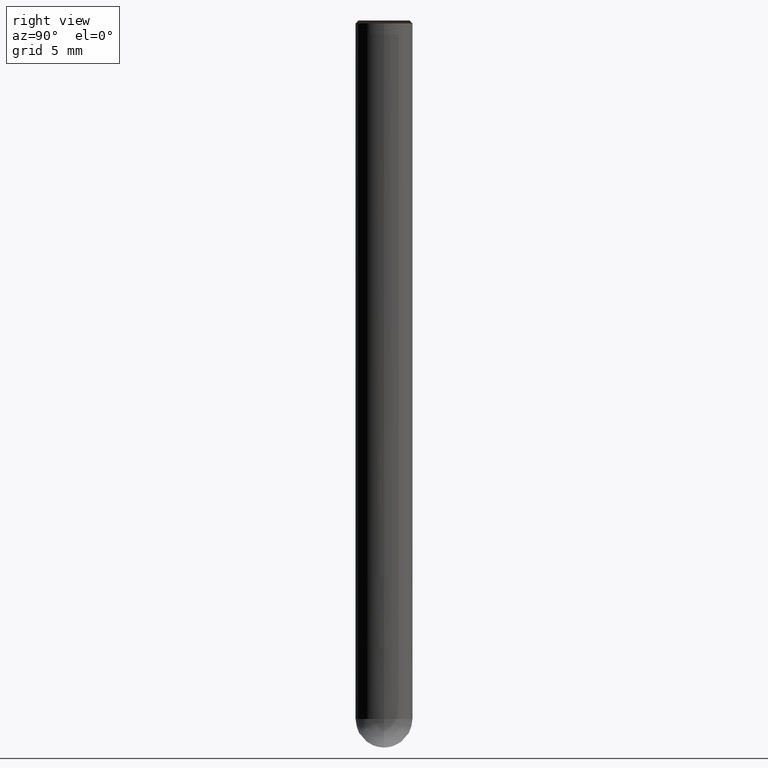
[diagram: clean part render]
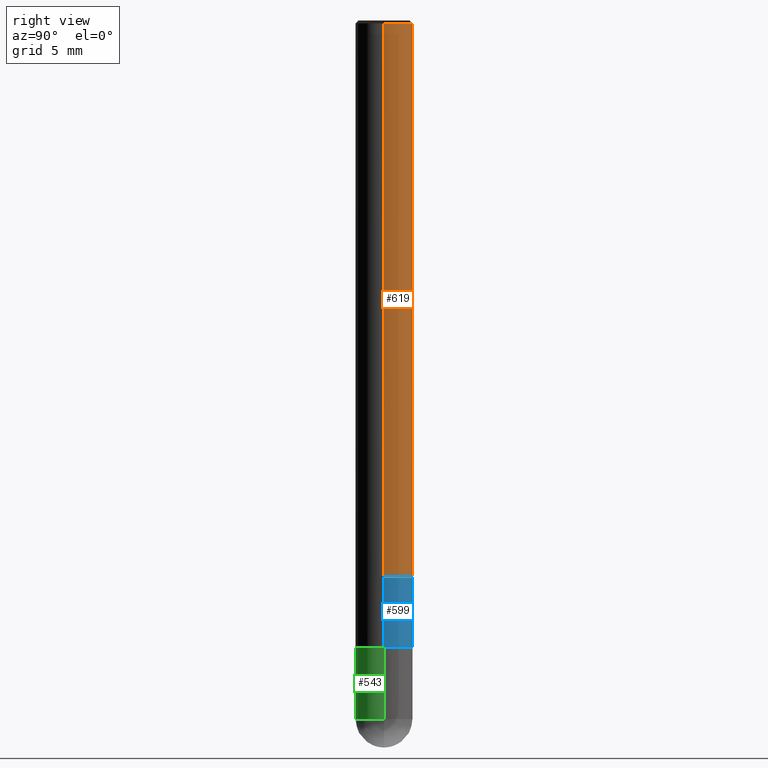
[diagram: same view with three faces highlighted in distinct colors, each labeled with its STEP entity id]
A machine part, right view with three faces highlighted in distinct colors.
Their STEP definitions:

[orange] entity #619 — the highlighted face is a freeform B-spline surface patch.
#425=CARTESIAN_POINT('',(2.0,0.0,0.0));
#426=CARTESIAN_POINT('',(2.0,2.0,0.0));
#427=CARTESIAN_POINT('',(0.0,2.0,0.0));
#428=CARTESIAN_POINT('',(-2.0,2.0,0.0));
#429=CARTESIAN_POINT('',(-2.0,0.0,0.0));
#430=CARTESIAN_POINT('',(2.0,0.0,38.8));
#431=CARTESIAN_POINT('',(2.0,2.0,38.8));
#432=CARTESIAN_POINT('',(0.0,2.0,38.8));
#433=CARTESIAN_POINT('',(-2.0,2.0,38.8));
#434=CARTESIAN_POINT('',(-2.0,0.0,38.8));
#600=(
BOUNDED_SURFACE()
B_SPLINE_SURFACE(1,2,(
(#425,#426,#427,#428,#429),
(#430,#431,#432,#433,#434)
), .UNSPECIFIED.,.F.,.F.,.F.)
B_SPLINE_SURFACE_WITH_KNOTS((2,2),(3,2,3),(
0.0,1.0),(
0.0,0.5,1.0), .UNSPECIFIED.)
GEOMETRIC_REPRESENTATION_ITEM()
RATIONAL_B_SPLINE_SURFACE(((1.0,0.707106781187,1.0,0.707106781187,1.0),
(1.0,0.707106781187,1.0,0.707106781187,1.0)
))
REPRESENTATION_ITEM('')
SURFACE()
);
#601=(
BOUNDED_CURVE()
B_SPLINE_CURVE(2,(#429,#428,#427,#426,#425),.UNSPECIFIED.,.F.,.F.)
B_SPLINE_CURVE_WITH_KNOTS((3,2,3),
(0.0,0.5,1.0),.UNSPECIFIED.)
CURVE()
GEOMETRIC_REPRESENTATION_ITEM()
RATIONAL_B_SPLINE_CURVE((1.0,0.707106781187,1.0,0.707106781187,1.0))
REPRESENTATION_ITEM('')
);
#602=(
BOUNDED_CURVE()
B_SPLINE_CURVE(1,(#425,#430),.UNSPECIFIED.,.F.,.F.)
B_SPLINE_CURVE_WITH_KNOTS((2,2),
(0.0,1.0),.UNSPECIFIED.)
CURVE()
GEOMETRIC_REPRESENTATION_ITEM()
RATIONAL_B_SPLINE_CURVE((1.0,1.0))
REPRESENTATION_ITEM('')
);
#603=(
BOUNDED_CURVE()
B_SPLINE_CURVE(2,(#430,#431,#432,#433,#434),.UNSPECIFIED.,.F.,.F.)
B_SPLINE_CURVE_WITH_KNOTS((3,2,3),
(0.0,0.5,1.0),.UNSPECIFIED.)
CURVE()
GEOMETRIC_REPRESENTATION_ITEM()
RATIONAL_B_SPLINE_CURVE((1.0,0.707106781187,1.0,0.707106781187,1.0))
REPRESENTATION_ITEM('')
);
#604=(
BOUNDED_CURVE()
B_SPLINE_CURVE(1,(#434,#429),.UNSPECIFIED.,.F.,.F.)
B_SPLINE_CURVE_WITH_KNOTS((2,2),
(0.0,1.0),.UNSPECIFIED.)
CURVE()
GEOMETRIC_REPRESENTATION_ITEM()
RATIONAL_B_SPLINE_CURVE((1.0,1.0))
REPRESENTATION_ITEM('')
);
#605=VERTEX_POINT('',#425);
#606=VERTEX_POINT('',#429);
#607=VERTEX_POINT('',#430);
#608=VERTEX_POINT('',#434);
#609=EDGE_CURVE('',#606,#605,#601,.T.);
#610=EDGE_CURVE('',#605,#607,#602,.T.);
#611=EDGE_CURVE('',#607,#608,#603,.T.);
#612=EDGE_CURVE('',#608,#606,#604,.T.);
#613=ORIENTED_EDGE('',*,*,#609,.T.);
#614=ORIENTED_EDGE('',*,*,#610,.T.);
#615=ORIENTED_EDGE('',*,*,#611,.T.);
#616=ORIENTED_EDGE('',*,*,#612,.T.);
#617=EDGE_LOOP('',(#613,#614,#615,#616));
#618=FACE_OUTER_BOUND('',#617,.T.);
#619=ADVANCED_FACE('',(#618),#600,.T.);

[blue] entity #599 — the highlighted face is a freeform B-spline surface patch.
#410=CARTESIAN_POINT('',(2.0,0.0,-5.0));
#411=CARTESIAN_POINT('',(2.0,2.0,-5.0));
#412=CARTESIAN_POINT('',(0.0,2.0,-5.0));
#413=CARTESIAN_POINT('',(-2.0,2.0,-5.0));
#414=CARTESIAN_POINT('',(-2.0,0.0,-5.0));
#425=CARTESIAN_POINT('',(2.0,0.0,0.0));
#426=CARTESIAN_POINT('',(2.0,2.0,0.0));
#427=CARTESIAN_POINT('',(0.0,2.0,0.0));
#428=CARTESIAN_POINT('',(-2.0,2.0,0.0));
#429=CARTESIAN_POINT('',(-2.0,0.0,0.0));
#580=(
BOUNDED_SURFACE()
B_SPLINE_SURFACE(1,2,(
(#410,#411,#412,#413,#414),
(#425,#426,#427,#428,#429)
), .UNSPECIFIED.,.F.,.F.,.F.)
B_SPLINE_SURFACE_WITH_KNOTS((2,2),(3,2,3),(
0.0,1.0),(
0.0,0.5,1.0), .UNSPECIFIED.)
GEOMETRIC_REPRESENTATION_ITEM()
RATIONAL_B_SPLINE_SURFACE(((1.0,0.707106781187,1.0,0.707106781187,1.0),
(1.0,0.707106781187,1.0,0.707106781187,1.0)
))
REPRESENTATION_ITEM('')
SURFACE()
);
#581=(
BOUNDED_CURVE()
B_SPLINE_CURVE(2,(#414,#413,#412,#411,#410),.UNSPECIFIED.,.F.,.F.)
B_SPLINE_CURVE_WITH_KNOTS((3,2,3),
(0.0,0.5,1.0),.UNSPECIFIED.)
CURVE()
GEOMETRIC_REPRESENTATION_ITEM()
RATIONAL_B_SPLINE_CURVE((1.0,0.707106781187,1.0,0.707106781187,1.0))
REPRESENTATION_ITEM('')
);
#582=(
BOUNDED_CURVE()
B_SPLINE_CURVE(1,(#410,#425),.UNSPECIFIED.,.F.,.F.)
B_SPLINE_CURVE_WITH_KNOTS((2,2),
(0.0,1.0),.UNSPECIFIED.)
CURVE()
GEOMETRIC_REPRESENTATION_ITEM()
RATIONAL_B_SPLINE_CURVE((1.0,1.0))
REPRESENTATION_ITEM('')
);
#583=(
BOUNDED_CURVE()
B_SPLINE_CURVE(2,(#425,#426,#427,#428,#429),.UNSPECIFIED.,.F.,.F.)
B_SPLINE_CURVE_WITH_KNOTS((3,2,3),
(0.0,0.5,1.0),.UNSPECIFIED.)
CURVE()
GEOMETRIC_REPRESENTATION_ITEM()
RATIONAL_B_SPLINE_CURVE((1.0,0.707106781187,1.0,0.707106781187,1.0))
REPRESENTATION_ITEM('')
);
#584=(
BOUNDED_CURVE()
B_SPLINE_CURVE(1,(#429,#414),.UNSPECIFIED.,.F.,.F.)
B_SPLINE_CURVE_WITH_KNOTS((2,2),
(0.0,1.0),.UNSPECIFIED.)
CURVE()
GEOMETRIC_REPRESENTATION_ITEM()
RATIONAL_B_SPLINE_CURVE((1.0,1.0))
REPRESENTATION_ITEM('')
);
#585=VERTEX_POINT('',#410);
#586=VERTEX_POINT('',#414);
#587=VERTEX_POINT('',#425);
#588=VERTEX_POINT('',#429);
#589=EDGE_CURVE('',#586,#585,#581,.T.);
#590=EDGE_CURVE('',#585,#587,#582,.T.);
#591=EDGE_CURVE('',#587,#588,#583,.T.);
#592=EDGE_CURVE('',#588,#586,#584,.T.);
#593=ORIENTED_EDGE('',*,*,#589,.T.);
#594=ORIENTED_EDGE('',*,*,#590,.T.);
#595=ORIENTED_EDGE('',*,*,#591,.T.);
#596=ORIENTED_EDGE('',*,*,#592,.T.);
#597=EDGE_LOOP('',(#593,#594,#595,#596));
#598=FACE_OUTER_BOUND('',#597,.T.);
#599=ADVANCED_FACE('',(#598),#580,.T.);

[green] entity #543 — the highlighted face is a freeform B-spline surface patch.
#405=CARTESIAN_POINT('',(2.0,0.0,-10.0));
#409=CARTESIAN_POINT('',(-2.0,0.0,-10.0));
#410=CARTESIAN_POINT('',(2.0,0.0,-5.0));
#414=CARTESIAN_POINT('',(-2.0,0.0,-5.0));
#419=CARTESIAN_POINT('',(-2.0,-2.0,-10.0));
#420=CARTESIAN_POINT('',(0.0,-2.0,-10.0));
#421=CARTESIAN_POINT('',(2.0,-2.0,-10.0));
#422=CARTESIAN_POINT('',(-2.0,-2.0,-5.0));
#423=CARTESIAN_POINT('',(0.0,-2.0,-5.0));
#424=CARTESIAN_POINT('',(2.0,-2.0,-5.0));
#524=(
BOUNDED_SURFACE()
B_SPLINE_SURFACE(1,2,(
(#409,#419,#420,#421,#405),
(#414,#422,#423,#424,#410)
), .UNSPECIFIED.,.F.,.F.,.F.)
B_SPLINE_SURFACE_WITH_KNOTS((2,2),(3,2,3),(
0.0,1.0),(
0.0,0.5,1.0), .UNSPECIFIED.)
GEOMETRIC_REPRESENTATION_ITEM()
RATIONAL_B_SPLINE_SURFACE(((1.0,0.707106781187,1.0,0.707106781187,1.0),
(1.0,0.707106781187,1.0,0.707106781187,1.0)
))
REPRESENTATION_ITEM('')
SURFACE()
);
#525=(
BOUNDED_CURVE()
B_SPLINE_CURVE(2,(#405,#421,#420,#419,#409),.UNSPECIFIED.,.F.,.F.)
B_SPLINE_CURVE_WITH_KNOTS((3,2,3),
(0.0,0.5,1.0),.UNSPECIFIED.)
CURVE()
GEOMETRIC_REPRESENTATION_ITEM()
RATIONAL_B_SPLINE_CURVE((1.0,0.707106781187,1.0,0.707106781187,1.0))
REPRESENTATION_ITEM('')
);
#526=(
BOUNDED_CURVE()
B_SPLINE_CURVE(1,(#409,#414),.UNSPECIFIED.,.F.,.F.)
B_SPLINE_CURVE_WITH_KNOTS((2,2),
(0.0,1.0),.UNSPECIFIED.)
CURVE()
GEOMETRIC_REPRESENTATION_ITEM()
RATIONAL_B_SPLINE_CURVE((1.0,1.0))
REPRESENTATION_ITEM('')
);
#527=(
BOUNDED_CURVE()
B_SPLINE_CURVE(2,(#414,#422,#423,#424,#410),.UNSPECIFIED.,.F.,.F.)
B_SPLINE_CURVE_WITH_KNOTS((3,2,3),
(0.0,0.5,1.0),.UNSPECIFIED.)
CURVE()
GEOMETRIC_REPRESENTATION_ITEM()
RATIONAL_B_SPLINE_CURVE((1.0,0.707106781187,1.0,0.707106781187,1.0))
REPRESENTATION_ITEM('')
);
#528=(
BOUNDED_CURVE()
B_SPLINE_CURVE(1,(#410,#405),.UNSPECIFIED.,.F.,.F.)
B_SPLINE_CURVE_WITH_KNOTS((2,2),
(0.0,1.0),.UNSPECIFIED.)
CURVE()
GEOMETRIC_REPRESENTATION_ITEM()
RATIONAL_B_SPLINE_CURVE((1.0,1.0))
REPRESENTATION_ITEM('')
);
#529=VERTEX_POINT('',#405);
#530=VERTEX_POINT('',#409);
#531=VERTEX_POINT('',#410);
#532=VERTEX_POINT('',#414);
#533=EDGE_CURVE('',#529,#530,#525,.T.);
#534=EDGE_CURVE('',#530,#532,#526,.T.);
#535=EDGE_CURVE('',#532,#531,#527,.T.);
#536=EDGE_CURVE('',#531,#529,#528,.T.);
#537=ORIENTED_EDGE('',*,*,#533,.T.);
#538=ORIENTED_EDGE('',*,*,#534,.T.);
#539=ORIENTED_EDGE('',*,*,#535,.T.);
#540=ORIENTED_EDGE('',*,*,#536,.T.);
#541=EDGE_LOOP('',(#537,#538,#539,#540));
#542=FACE_OUTER_BOUND('',#541,.T.);
#543=ADVANCED_FACE('',(#542),#524,.T.);